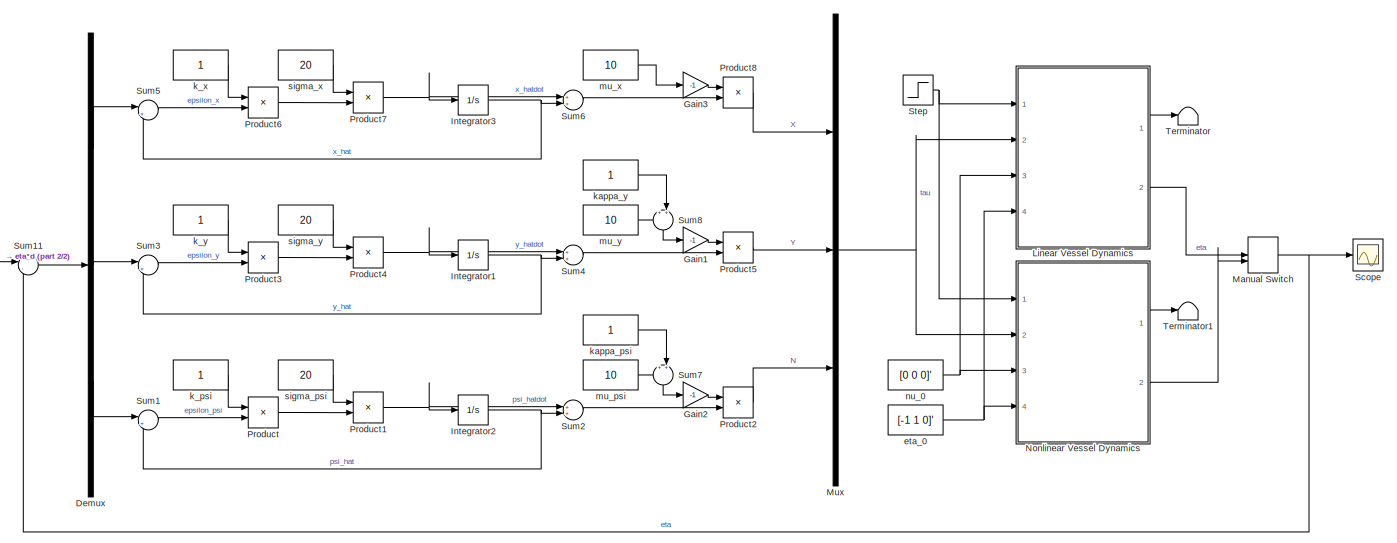
[diagram: root canvas - part 1/2, most of the canvas]
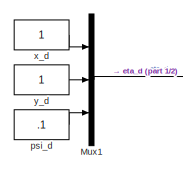
[diagram: root canvas - part 2/2, middle left region]
MODEL slx_8bcb5aa0008c
KIND model
CONFIG AbsTol = auto
CONFIG FixedStep = auto
CONFIG MaxStep = 0.001
CONFIG MinStep = auto
CONFIG RelTol = 1e-3
CONFIG SampleTimeConstraint = Unconstrained
CONFIG Solver = ode45
CONFIG SolverMode = Auto
CONFIG SolverName = ode45
CONFIG StartTime = 0.0
CONFIG StopTime = 100
BLOCK [Demux] Demux
  DisplayOption = bar
  Outputs = 3
  Ports = [1, 3]
BLOCK [Gain] Gain1
  Gain = -1
  OutDataTypeStr = Inherit: Inherit via internal rule
  ParamDataTypeStr = Inherit: Inherit via internal rule
  SaturateOnIntegerOverflow = off
BLOCK [Gain] Gain2
  Gain = -1
  OutDataTypeStr = Inherit: Inherit via internal rule
  ParamDataTypeStr = Inherit: Inherit via internal rule
  SaturateOnIntegerOverflow = off
BLOCK [Gain] Gain3
  Gain = -1
  OutDataTypeStr = Inherit: Inherit via internal rule
  ParamDataTypeStr = Inherit: Inherit via internal rule
  SaturateOnIntegerOverflow = off
BLOCK [Integrator] Integrator1
  Ports = [1, 1]
BLOCK [Integrator] Integrator2
  Ports = [1, 1]
BLOCK [Integrator] Integrator3
  Ports = [1, 1]
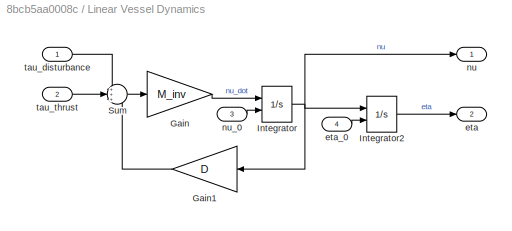
BLOCK [SubSystem] Linear Vessel Dynamics 
  Ports = [4, 2]
  RequestExecContextInheritance = off
  Variant = off
BLOCK [Gain] Linear Vessel Dynamics /Gain
  Gain = M_inv
  Multiplication = Matrix(K*u)
  OutDataTypeStr = Inherit: Inherit via internal rule
  ParamDataTypeStr = Inherit: Inherit via internal rule
  SaturateOnIntegerOverflow = off
BLOCK [Gain] Linear Vessel Dynamics /Gain1
  Gain = D
  Multiplication = Matrix(K*u)
  OutDataTypeStr = Inherit: Inherit via internal rule
  ParamDataTypeStr = Inherit: Inherit via internal rule
  SaturateOnIntegerOverflow = off
BLOCK [Integrator] Linear Vessel Dynamics /Integrator
  InitialCondition = nu_0
  InitialConditionSource = external
  Ports = [2, 1]
BLOCK [Integrator] Linear Vessel Dynamics /Integrator2
  InitialCondition = nu_0
  InitialConditionSource = external
  Ports = [2, 1]
BLOCK [Sum] Linear Vessel Dynamics /Sum
  IconShape = round
  InputSameDT = off
  Inputs = +++
  OutDataTypeStr = Inherit: Inherit via internal rule
  Ports = [3, 1]
  SaturateOnIntegerOverflow = off
BLOCK [Outport] Linear Vessel Dynamics /eta
  IconDisplay = Port number
  Port = 2
BLOCK [Inport] Linear Vessel Dynamics /eta_0 
  IconDisplay = Port number
  Port = 4
BLOCK [Outport] Linear Vessel Dynamics /nu
  IconDisplay = Port number
BLOCK [Inport] Linear Vessel Dynamics /nu_0
  IconDisplay = Port number
  Port = 3
BLOCK [Inport] Linear Vessel Dynamics /tau_disturbance
  IconDisplay = Port number
BLOCK [Inport] Linear Vessel Dynamics /tau_thrust
  IconDisplay = Port number
  Port = 2
BLOCK [ManualSwitch] Manual Switch
BLOCK [Mux] Mux
  DisplayOption = bar
  Inputs = 3
  Ports = [3, 1]
BLOCK [Mux] Mux1
  DisplayOption = bar
  Inputs = 3
  Ports = [3, 1]
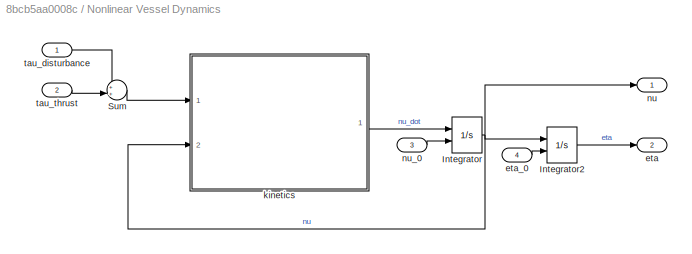
BLOCK [SubSystem] Nonlinear Vessel Dynamics
  Commented = on
  Ports = [4, 2]
  RequestExecContextInheritance = off
  Variant = off
BLOCK [Integrator] Nonlinear Vessel Dynamics/Integrator
  InitialCondition = nu_0
  InitialConditionSource = external
  Ports = [2, 1]
BLOCK [Integrator] Nonlinear Vessel Dynamics/Integrator2
  InitialCondition = nu_0
  InitialConditionSource = external
  Ports = [2, 1]
BLOCK [Sum] Nonlinear Vessel Dynamics/Sum
  IconShape = round
  InputSameDT = off
  Inputs = ++|
  OutDataTypeStr = Inherit: Inherit via internal rule
  Ports = [2, 1]
  SaturateOnIntegerOverflow = off
BLOCK [Outport] Nonlinear Vessel Dynamics/eta
  IconDisplay = Port number
  Port = 2
BLOCK [Inport] Nonlinear Vessel Dynamics/eta_0 
  IconDisplay = Port number
  Port = 4
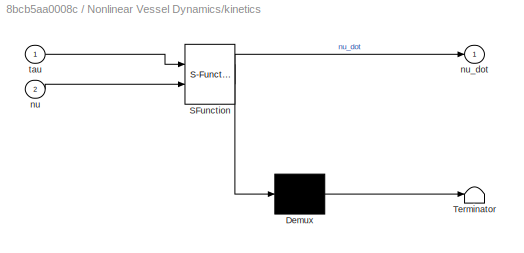
BLOCK [SubSystem] Nonlinear Vessel Dynamics/kinetics
  ErrorFcn = Stateflow.Translate.translate
  PermitHierarchicalResolution = ParametersOnly
  Ports = [2, 1]
  RequestExecContextInheritance = off
  SFBlockType = MATLAB Function
  TreatAsAtomicUnit = on
  Variant = off
BLOCK [Demux] Nonlinear Vessel Dynamics/kinetics/ Demux 
  Outputs = 1
  Ports = [1, 1]
BLOCK [S-Function] Nonlinear Vessel Dynamics/kinetics/ SFunction 
  EnableBusSupport = on
  FunctionName = sf_sfun
  PortCounts = [2 2]
  Ports = [2, 2]
  SFunctionDeploymentMode = off
  Tag = Stateflow S-Function consecutiveCompensator2 2
BLOCK [Terminator] Nonlinear Vessel Dynamics/kinetics/ Terminator 
BLOCK [Inport] Nonlinear Vessel Dynamics/kinetics/nu
  IconDisplay = Port number
  Port = 2
BLOCK [Outport] Nonlinear Vessel Dynamics/kinetics/nu_dot
  IconDisplay = Port number
BLOCK [Inport] Nonlinear Vessel Dynamics/kinetics/tau
  IconDisplay = Port number
BLOCK [Outport] Nonlinear Vessel Dynamics/nu
  IconDisplay = Port number
BLOCK [Inport] Nonlinear Vessel Dynamics/nu_0
  IconDisplay = Port number
  Port = 3
BLOCK [Inport] Nonlinear Vessel Dynamics/tau_disturbance
  IconDisplay = Port number
BLOCK [Inport] Nonlinear Vessel Dynamics/tau_thrust
  IconDisplay = Port number
  Port = 2
BLOCK [Product] Product
  InputSameDT = off
  OutDataTypeStr = Inherit: Inherit via internal rule
  Ports = [2, 1]
  RndMeth = Floor
  SaturateOnIntegerOverflow = off
BLOCK [Product] Product1
  InputSameDT = off
  OutDataTypeStr = Inherit: Inherit via internal rule
  Ports = [2, 1]
  RndMeth = Floor
  SaturateOnIntegerOverflow = off
BLOCK [Product] Product2
  InputSameDT = off
  OutDataTypeStr = Inherit: Inherit via internal rule
  Ports = [2, 1]
  RndMeth = Floor
  SaturateOnIntegerOverflow = off
BLOCK [Product] Product3
  InputSameDT = off
  OutDataTypeStr = Inherit: Inherit via internal rule
  Ports = [2, 1]
  RndMeth = Floor
  SaturateOnIntegerOverflow = off
BLOCK [Product] Product4
  InputSameDT = off
  OutDataTypeStr = Inherit: Inherit via internal rule
  Ports = [2, 1]
  RndMeth = Floor
  SaturateOnIntegerOverflow = off
BLOCK [Product] Product5
  InputSameDT = off
  OutDataTypeStr = Inherit: Inherit via internal rule
  Ports = [2, 1]
  RndMeth = Floor
  SaturateOnIntegerOverflow = off
BLOCK [Product] Product6
  InputSameDT = off
  OutDataTypeStr = Inherit: Inherit via internal rule
  Ports = [2, 1]
  RndMeth = Floor
  SaturateOnIntegerOverflow = off
BLOCK [Product] Product7
  InputSameDT = off
  OutDataTypeStr = Inherit: Inherit via internal rule
  Ports = [2, 1]
  RndMeth = Floor
  SaturateOnIntegerOverflow = off
BLOCK [Product] Product8
  InputSameDT = off
  OutDataTypeStr = Inherit: Inherit via internal rule
  Ports = [2, 1]
  RndMeth = Floor
  SaturateOnIntegerOverflow = off
BLOCK [Scope] Scope
  DataFormat = StructureWithTime
  Decimation = 1
  Grid = on
  LimitDataPoints = off
  MaxDataPoints = 5000
  Ports = [1]
  SampleInput = off
  SampleTime = -1
  SaveName = ScopeData
  SaveToWorkspace = off
  ShowLegends = off
  TickLabels = OneTimeTick
  TimeRange = auto
  YMax = 3.5
  YMin = 0
  ZoomMode = on
BLOCK [Step] Step
  After = [.3 .3 0]'
  Before = [0 0 0]'
  SampleTime = 0
  Time = 60
BLOCK [Sum] Sum1
  IconShape = round
  InputSameDT = off
  Inputs = |+-
  OutDataTypeStr = Inherit: Inherit via internal rule
  Ports = [2, 1]
  SaturateOnIntegerOverflow = off
BLOCK [Sum] Sum11
  IconShape = round
  InputSameDT = off
  Inputs = |-+
  OutDataTypeStr = Inherit: Inherit via internal rule
  Ports = [2, 1]
  SaturateOnIntegerOverflow = off
BLOCK [Sum] Sum2
  IconShape = round
  InputSameDT = off
  Inputs = ++|
  OutDataTypeStr = Inherit: Inherit via internal rule
  Ports = [2, 1]
  SaturateOnIntegerOverflow = off
BLOCK [Sum] Sum3
  IconShape = round
  InputSameDT = off
  Inputs = |+-
  OutDataTypeStr = Inherit: Inherit via internal rule
  Ports = [2, 1]
  SaturateOnIntegerOverflow = off
BLOCK [Sum] Sum4
  IconShape = round
  InputSameDT = off
  Inputs = ++|
  OutDataTypeStr = Inherit: Inherit via internal rule
  Ports = [2, 1]
  SaturateOnIntegerOverflow = off
BLOCK [Sum] Sum5
  IconShape = round
  InputSameDT = off
  Inputs = |+-
  OutDataTypeStr = Inherit: Inherit via internal rule
  Ports = [2, 1]
  SaturateOnIntegerOverflow = off
BLOCK [Sum] Sum6
  IconShape = round
  InputSameDT = off
  Inputs = ++|
  OutDataTypeStr = Inherit: Inherit via internal rule
  Ports = [2, 1]
  SaturateOnIntegerOverflow = off
BLOCK [Sum] Sum7
  IconShape = round
  InputSameDT = off
  Inputs = ++|
  OutDataTypeStr = Inherit: Inherit via internal rule
  Ports = [2, 1]
  SaturateOnIntegerOverflow = off
BLOCK [Sum] Sum8
  IconShape = round
  InputSameDT = off
  Inputs = ++|
  OutDataTypeStr = Inherit: Inherit via internal rule
  Ports = [2, 1]
  SaturateOnIntegerOverflow = off
BLOCK [Terminator] Terminator
BLOCK [Terminator] Terminator1
BLOCK [Constant] eta_0
  Value = [-1 1 0]'
BLOCK [Constant] k_psi
BLOCK [Constant] k_x
BLOCK [Constant] k_y
BLOCK [Constant] kappa_psi
BLOCK [Constant] kappa_y
BLOCK [Constant] mu_psi
  Value = 10
BLOCK [Constant] mu_x
  Value = 10
BLOCK [Constant] mu_y
  Value = 10
BLOCK [Constant] nu_0
  Value = [0 0 0]'
BLOCK [Constant] psi_d
  Value = .1
BLOCK [Constant] sigma_psi
  Value = 20
BLOCK [Constant] sigma_x
  Value = 20
BLOCK [Constant] sigma_y
  Value = 20
BLOCK [Constant] x_d
BLOCK [Constant] y_d
LINE Demux:1 -> Sum5:1
LINE Demux:2 -> Sum3:1
LINE Demux:3 -> Sum1:1
LINE Gain1:1 -> Product5:1
LINE Gain2:1 -> Product2:1
LINE Gain3:1 -> Product8:1
NET Integrator1:1 -> Sum3:2, Sum4:2
NET Integrator2:1 -> Sum1:2, Sum2:2
NET Integrator3:1 -> Sum5:2, Sum6:2
LINE Linear Vessel Dynamics /Gain1:1 -> Linear Vessel Dynamics /Sum:3
LINE Linear Vessel Dynamics /Gain:1 -> Linear Vessel Dynamics /Integrator:1
LINE Linear Vessel Dynamics /Integrator2:1 -> Linear Vessel Dynamics /eta:1
NET Linear Vessel Dynamics /Integrator:1 -> Linear Vessel Dynamics /Gain1:1, Linear Vessel Dynamics /Integrator2:1, Linear Vessel Dynamics /nu:1
LINE Linear Vessel Dynamics /Sum:1 -> Linear Vessel Dynamics /Gain:1
LINE Linear Vessel Dynamics /eta_0 :1 -> Linear Vessel Dynamics /Integrator2:2
LINE Linear Vessel Dynamics /nu_0:1 -> Linear Vessel Dynamics /Integrator:2
LINE Linear Vessel Dynamics /tau_disturbance:1 -> Linear Vessel Dynamics /Sum:1
LINE Linear Vessel Dynamics /tau_thrust:1 -> Linear Vessel Dynamics /Sum:2
LINE Linear Vessel Dynamics :1 -> Terminator:1
LINE Linear Vessel Dynamics :2 -> Manual Switch:1
NET Manual Switch:1 -> Scope:1, Sum11:2
LINE Mux1:1 -> Sum11:1
NET Mux:1 -> Linear Vessel Dynamics :2, Nonlinear Vessel Dynamics:2
LINE Nonlinear Vessel Dynamics/Integrator2:1 -> Nonlinear Vessel Dynamics/eta:1
NET Nonlinear Vessel Dynamics/Integrator:1 -> Nonlinear Vessel Dynamics/Integrator2:1, Nonlinear Vessel Dynamics/kinetics:2, Nonlinear Vessel Dynamics/nu:1
LINE Nonlinear Vessel Dynamics/Sum:1 -> Nonlinear Vessel Dynamics/kinetics:1
LINE Nonlinear Vessel Dynamics/eta_0 :1 -> Nonlinear Vessel Dynamics/Integrator2:2
LINE Nonlinear Vessel Dynamics/kinetics:1 -> Nonlinear Vessel Dynamics/Integrator:1
LINE Nonlinear Vessel Dynamics/nu_0:1 -> Nonlinear Vessel Dynamics/Integrator:2
LINE Nonlinear Vessel Dynamics/tau_disturbance:1 -> Nonlinear Vessel Dynamics/Sum:1
LINE Nonlinear Vessel Dynamics/tau_thrust:1 -> Nonlinear Vessel Dynamics/Sum:2
LINE Nonlinear Vessel Dynamics:1 -> Terminator1:1
LINE Nonlinear Vessel Dynamics:2 -> Manual Switch:2
NET Product1:1 -> Integrator2:1, Sum2:1
LINE Product2:1 -> Mux:3
LINE Product3:1 -> Product4:2
NET Product4:1 -> Integrator1:1, Sum4:1
LINE Product5:1 -> Mux:2
LINE Product6:1 -> Product7:2
NET Product7:1 -> Integrator3:1, Sum6:1
LINE Product8:1 -> Mux:1
LINE Product:1 -> Product1:2
NET Step:1 -> Linear Vessel Dynamics :1, Nonlinear Vessel Dynamics:1
LINE Sum11:1 -> Demux:1
LINE Sum1:1 -> Product:2
LINE Sum2:1 -> Product2:2
LINE Sum3:1 -> Product3:2
LINE Sum4:1 -> Product5:2
LINE Sum5:1 -> Product6:2
LINE Sum6:1 -> Product8:2
LINE Sum7:1 -> Gain2:1
LINE Sum8:1 -> Gain1:1
NET eta_0:1 -> Linear Vessel Dynamics :4, Nonlinear Vessel Dynamics:4
LINE k_psi:1 -> Product:1
LINE k_x:1 -> Product6:1
LINE k_y:1 -> Product3:1
LINE kappa_psi:1 -> Sum7:2
LINE kappa_y:1 -> Sum8:2
LINE mu_psi:1 -> Sum7:1
LINE mu_x:1 -> Gain3:1
LINE mu_y:1 -> Sum8:1
NET nu_0:1 -> Linear Vessel Dynamics :3, Nonlinear Vessel Dynamics:3
LINE psi_d:1 -> Mux1:3
LINE sigma_psi:1 -> Product1:1
LINE sigma_x:1 -> Product7:1
LINE sigma_y:1 -> Product4:1
LINE x_d:1 -> Mux1:1
LINE y_d:1 -> Mux1:2
note: NET lines group one-source signal fan-out (src -> all destinations, sorted); 1:1 wires keep LINE
CHART Nonlinear Vessel Dynamics/kinetics states=1 transitions=1
  STATE_LABEL 'eML_blk_kernel()'
  STATE_LABEL 'SCRIPT:\nfunction nu_dot = CSAD_nu_dot(tau,nu)\n\nu   = nu(1);\nv   = nu(2);\nr   = nu(3);\n\n\n%% MATRICES\n\nm    = 127.92;   I_z  = 61.967;   x_g = 0; %0.0432;\n\n\n%% Added mass\nX_ud  =   3.262;\t\t\t\t\t\t\t\t\t\t\t\n\t\t\t\t\tY_vd =      28.89;\tN_vd =    0.157;\t\t\n\t\t\t\t\tY_rd =      0.525;\tN_rd =    13.98;\n\n%% Total mass matrix\nm_11 = m-X_ud;\nm_22 = m-Y_vd;\nm_23 = m*x_g-Y_rd;\nm_32 = m*x_g-N_vd;\nm_33 = I_z-N_rd;\n\nM    = [m_1...<+1535ch>'
